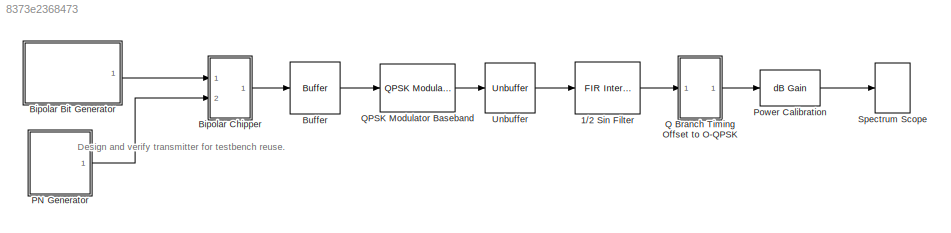
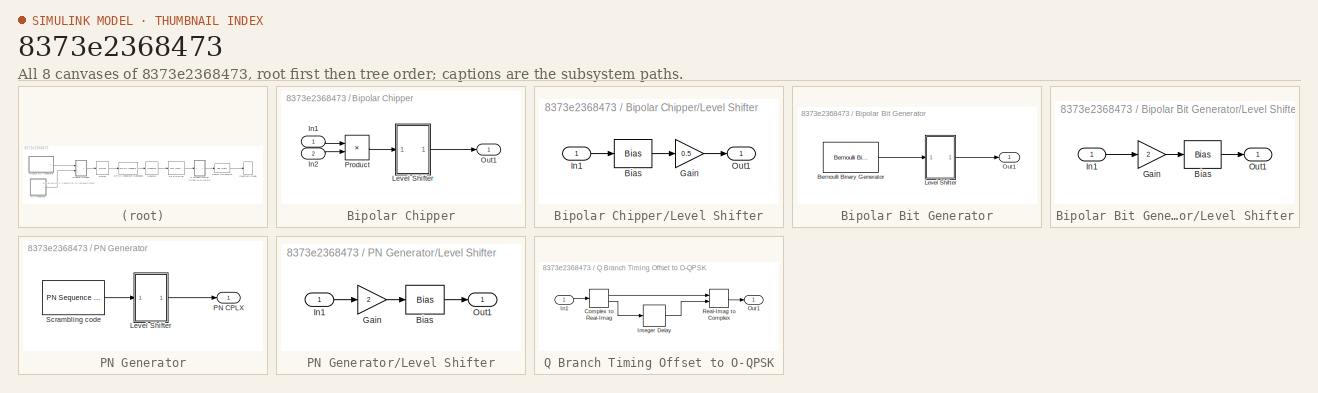
[diagram: thumbnail index - all 8 canvases of the model, root first then tree order]
MODEL slx_8373e2368473
KIND model
CONFIG AbsTol = auto
CONFIG EnableMultiTasking = on
CONFIG FixedStep = 1/(PSF_SampPerSym*Rsymbol*2)
CONFIG InitFcn = x=linspace(0,1,OS);\nweights=sin(pi*x);
CONFIG MaxStep = auto
CONFIG MinStep = auto
CONFIG PreLoadFcn = %Rates\nBitRate=250e3;\nChipRate=2e6;\nSymRate=ChipRate/2;\nRX_ChipDelay=6;\n\n\n%Pulse shaping filter\nOS=32;\n\n%Input Power\nPin=-12;\n\n\n
CONFIG RelTol = 1e-3
CONFIG SampleTimeConstraint = Unconstrained
CONFIG Solver = VariableStepDiscrete
CONFIG SolverName = VariableStepDiscrete
CONFIG StartTime = 0.0
CONFIG StopTime = 0.01
BLOCK [Reference] 1//2 Sin Filter  REF=dspmlti4/FIR
Interpolation
  Ports = [1, 1]
  SourceBlock = dspmlti4/FIR\nInterpolation
  SourceProductBaseCode = DS
  SourceProductName = DSP System Toolbox
  SourceType = FIR Interpolation
  UserDataPersistent = on
BLOCK [SubSystem] Bipolar Bit Generator
  Ports = [0, 1]
  RequestExecContextInheritance = off
  Variant = off
BLOCK [Reference] Bipolar Bit Generator/Bernoulli Binary Generator  REF=commrandsrc2/Bernoulli Binary
Generator
  Ports = [0, 1]
  SourceBlock = commrandsrc2/Bernoulli Binary\nGenerator
  SourceType = Bernoulli Binary Generator
BLOCK [SubSystem] Bipolar Bit Generator/Level Shifter
  Ports = [1, 1]
  RequestExecContextInheritance = off
  Variant = off
BLOCK [Bias] Bipolar Bit Generator/Level Shifter/Bias
  Bias = -1
  SaturateOnIntegerOverflow = off
BLOCK [Gain] Bipolar Bit Generator/Level Shifter/Gain
  Gain = 2
  OutDataTypeStr = Inherit: Inherit via internal rule
  ParamDataTypeStr = Inherit: Inherit via internal rule
  SaturateOnIntegerOverflow = off
BLOCK [Inport] Bipolar Bit Generator/Level Shifter/In1
  IconDisplay = Port number
BLOCK [Outport] Bipolar Bit Generator/Level Shifter/Out1
  IconDisplay = Port number
BLOCK [Outport] Bipolar Bit Generator/Out1
  IconDisplay = Port number
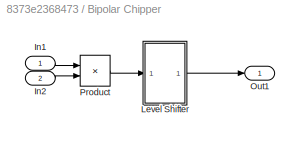
BLOCK [SubSystem] Bipolar Chipper
  Ports = [2, 1]
  RequestExecContextInheritance = off
  Variant = off
BLOCK [Inport] Bipolar Chipper/In1
  IconDisplay = Port number
BLOCK [Inport] Bipolar Chipper/In2
  IconDisplay = Port number
  Port = 2
BLOCK [SubSystem] Bipolar Chipper/Level Shifter
  Ports = [1, 1]
  RequestExecContextInheritance = off
  Variant = off
BLOCK [Bias] Bipolar Chipper/Level Shifter/Bias
  Bias = 1
  SaturateOnIntegerOverflow = off
BLOCK [Gain] Bipolar Chipper/Level Shifter/Gain
  Gain = 0.5
  OutDataTypeStr = Inherit: Inherit via internal rule
  ParamDataTypeStr = Inherit: Inherit via internal rule
  SaturateOnIntegerOverflow = off
BLOCK [Inport] Bipolar Chipper/Level Shifter/In1
  IconDisplay = Port number
BLOCK [Outport] Bipolar Chipper/Level Shifter/Out1
  IconDisplay = Port number
BLOCK [Outport] Bipolar Chipper/Out1
  IconDisplay = Port number
BLOCK [Product] Bipolar Chipper/Product
  InputSameDT = off
  OutDataTypeStr = Inherit: Inherit via internal rule
  Ports = [2, 1]
  SaturateOnIntegerOverflow = off
BLOCK [Buffer] Buffer
  N = 2
BLOCK [SubSystem] PN Generator
  Ports = [0, 1]
  RequestExecContextInheritance = off
  Variant = off
BLOCK [SubSystem] PN Generator/Level Shifter
  Ports = [1, 1]
  RequestExecContextInheritance = off
  Variant = off
BLOCK [Bias] PN Generator/Level Shifter/Bias
  Bias = -1
  SaturateOnIntegerOverflow = off
BLOCK [Gain] PN Generator/Level Shifter/Gain
  Gain = 2
  OutDataTypeStr = Inherit: Inherit via internal rule
  ParamDataTypeStr = Inherit: Inherit via internal rule
  SaturateOnIntegerOverflow = off
BLOCK [Inport] PN Generator/Level Shifter/In1
  IconDisplay = Port number
BLOCK [Outport] PN Generator/Level Shifter/Out1
  IconDisplay = Port number
BLOCK [Outport] PN Generator/PN CPLX
  IconDisplay = Port number
BLOCK [Reference] PN Generator/Scrambling code  REF=commseqgen2/PN Sequence
Generator
  Ports = [0, 1]
  SourceBlock = commseqgen2/PN Sequence\nGenerator
  SourceType = PN Sequence Generator
BLOCK [Reference] Power Calibration  REF=dspmathops/dB Gain
  Ports = [1, 1]
  SourceBlock = dspmathops/dB Gain
  SourceProductBaseCode = DS
  SourceProductName = DSP System Toolbox
  SourceType = dB Gain
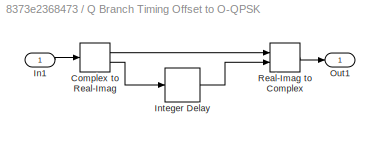
BLOCK [SubSystem] Q Branch Timing Offset to O-QPSK
  Ports = [1, 1]
  RequestExecContextInheritance = off
  Variant = off
BLOCK [ComplexToRealImag] Q Branch Timing Offset to O-QPSK/Complex to Real-Imag
  Ports = [1, 2]
BLOCK [Inport] Q Branch Timing Offset to O-QPSK/In1
  IconDisplay = Port number
BLOCK [Delay] Q Branch Timing Offset to O-QPSK/Integer Delay
  DelayLength = OS/2
  InputPortMap = u0
  Ports = [1, 1]
  UserDataPersistent = on
BLOCK [Outport] Q Branch Timing Offset to O-QPSK/Out1
  IconDisplay = Port number
BLOCK [RealImagToComplex] Q Branch Timing Offset to O-QPSK/Real-Imag to Complex
  Ports = [2, 1]
BLOCK [Reference] QPSK Modulator Baseband  REF=commdigbbndpm3/QPSK
Modulator
Baseband
  Ports = [1, 1]
  SourceBlock = commdigbbndpm3/QPSK\nModulator\nBaseband
  SourceProductBaseCode = CM
  SourceProductName = Communications System Toolbox
  SourceType = QPSK Modulator Baseband
BLOCK [SpectrumAnalyzer] Spectrum Scope
  NumInputPorts = 1
  Ports = [1]
  ScopeSpecificationString = spbscopes.SpectrumAnalyzerBlockCfg('CurrentConfiguration', extmgr.ConfigurationSet(extmgr.Configuration('Core','General UI',true,'FigureColor',[0.941176470588235 0.941176470588235 0.941176470588235]),extmgr.Configuration('Core','Source UI',true),extmgr.Configuration('Sources','WiredSimulink',true),extmgr.Configuration('Visuals','Spectrum',true,'AxesProperties',struct('Color',{[0 0 0],[0 0 0]},'XCo...<+2043ch>
BLOCK [Unbuffer] Unbuffer
  Ports = [1, 1]
ANNOTATION (root): Design and verify transmitter for testbench reuse.
LINE 1//2 Sin Filter:1 -> Q Branch Timing Offset to O-QPSK:1
LINE Bipolar Bit Generator/Bernoulli Binary Generator:1 -> Bipolar Bit Generator/Level Shifter:1
LINE Bipolar Bit Generator/Level Shifter/Bias:1 -> Bipolar Bit Generator/Level Shifter/Out1:1
LINE Bipolar Bit Generator/Level Shifter/Gain:1 -> Bipolar Bit Generator/Level Shifter/Bias:1
LINE Bipolar Bit Generator/Level Shifter/In1:1 -> Bipolar Bit Generator/Level Shifter/Gain:1
LINE Bipolar Bit Generator/Level Shifter:1 -> Bipolar Bit Generator/Out1:1
LINE Bipolar Bit Generator:1 -> Bipolar Chipper:1
LINE Bipolar Chipper/In1:1 -> Bipolar Chipper/Product:1
LINE Bipolar Chipper/In2:1 -> Bipolar Chipper/Product:2
LINE Bipolar Chipper/Level Shifter/Bias:1 -> Bipolar Chipper/Level Shifter/Gain:1
LINE Bipolar Chipper/Level Shifter/Gain:1 -> Bipolar Chipper/Level Shifter/Out1:1
LINE Bipolar Chipper/Level Shifter/In1:1 -> Bipolar Chipper/Level Shifter/Bias:1
LINE Bipolar Chipper/Level Shifter:1 -> Bipolar Chipper/Out1:1
LINE Bipolar Chipper/Product:1 -> Bipolar Chipper/Level Shifter:1
LINE Bipolar Chipper:1 -> Buffer:1
LINE Buffer:1 -> QPSK Modulator Baseband:1
LINE PN Generator/Level Shifter/Bias:1 -> PN Generator/Level Shifter/Out1:1
LINE PN Generator/Level Shifter/Gain:1 -> PN Generator/Level Shifter/Bias:1
LINE PN Generator/Level Shifter/In1:1 -> PN Generator/Level Shifter/Gain:1
LINE PN Generator/Level Shifter:1 -> PN Generator/PN CPLX:1
LINE PN Generator/Scrambling code:1 -> PN Generator/Level Shifter:1
LINE PN Generator:1 -> Bipolar Chipper:2
LINE Power Calibration:1 -> Spectrum Scope:1
LINE Q Branch Timing Offset to O-QPSK/Complex to Real-Imag:1 -> Q Branch Timing Offset to O-QPSK/Real-Imag to Complex:1
LINE Q Branch Timing Offset to O-QPSK/Complex to Real-Imag:2 -> Q Branch Timing Offset to O-QPSK/Integer Delay:1
LINE Q Branch Timing Offset to O-QPSK/In1:1 -> Q Branch Timing Offset to O-QPSK/Complex to Real-Imag:1
LINE Q Branch Timing Offset to O-QPSK/Integer Delay:1 -> Q Branch Timing Offset to O-QPSK/Real-Imag to Complex:2
LINE Q Branch Timing Offset to O-QPSK/Real-Imag to Complex:1 -> Q Branch Timing Offset to O-QPSK/Out1:1
LINE Q Branch Timing Offset to O-QPSK:1 -> Power Calibration:1
LINE QPSK Modulator Baseband:1 -> Unbuffer:1
LINE Unbuffer:1 -> 1//2 Sin Filter:1
